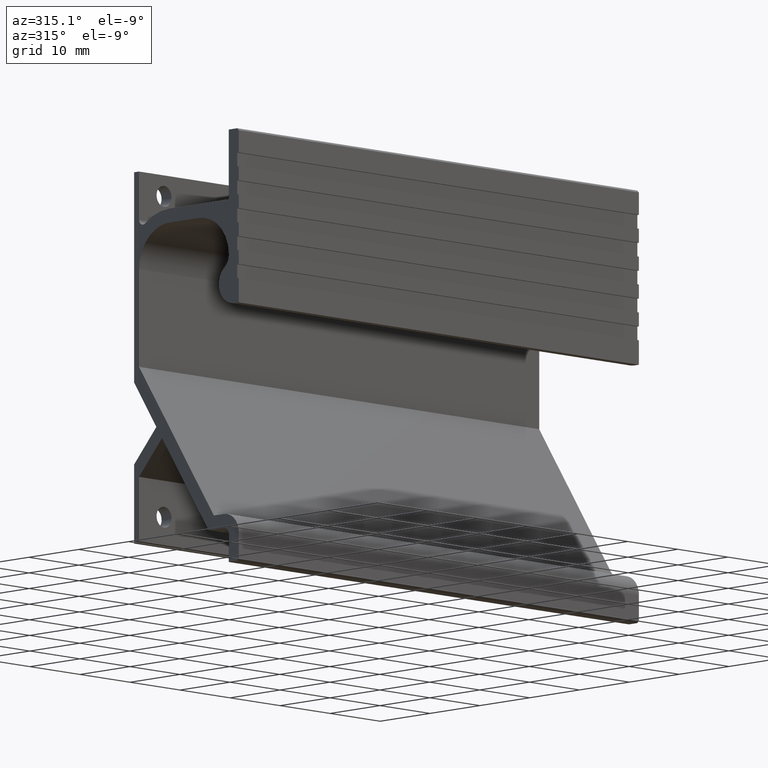
[diagram: clean part render]
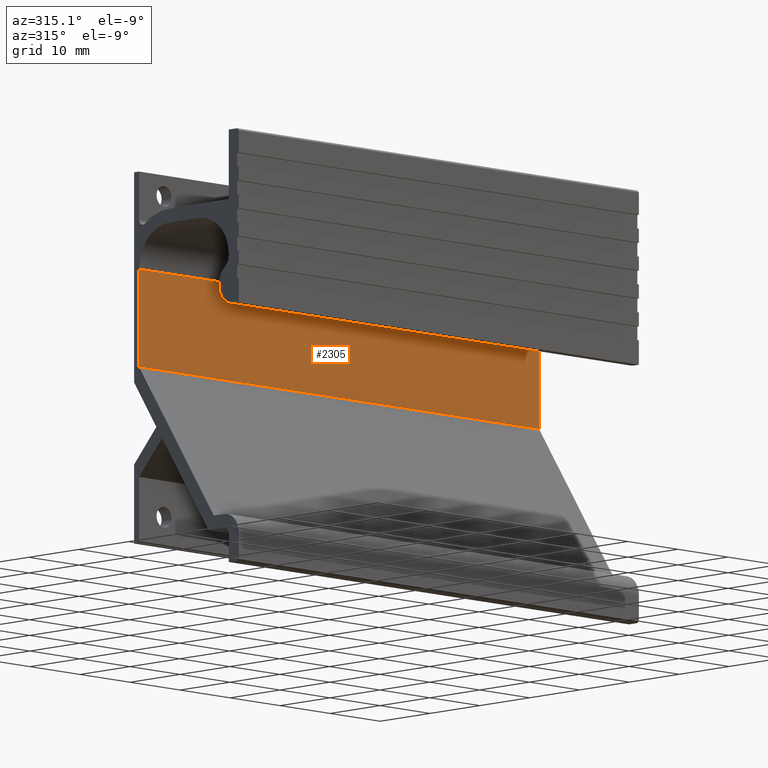
[diagram: same view with one face highlighted and labeled with its STEP entity id]
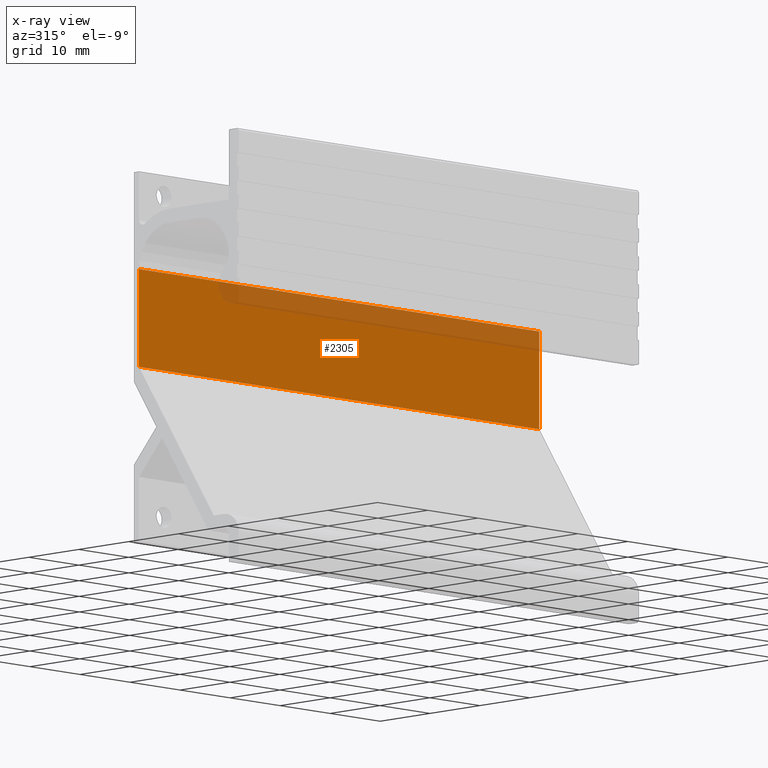
[diagram: x-ray of the same camera — body ghosted, the highlighted face saturated]
A machine part, auxiliary view. The second image highlights one B-rep face of the part: STEP entity #2305.
The next image is the same camera in x-ray: the body ghosted, the highlighted face saturated — about 16% of this face is hidden behind the body in this view.
In plain terms, the highlighted face is a freeform B-spline surface patch.
Its self-contained STEP definition (entity closure, byte-faithful):
#1240=CARTESIAN_POINT('',(40.0,18.0,44.0));
#1241=VERTEX_POINT('',#1240);
#1255=CARTESIAN_POINT('',(40.0,18.0,30.0));
#1256=VERTEX_POINT('',#1255);
#1257=CARTESIAN_POINT('',(40.0,18.0,44.0));
#1258=CARTESIAN_POINT('',(40.0,18.0,30.0));
#1259=QUASI_UNIFORM_CURVE('',1,(#1257,#1258),.UNSPECIFIED.,.F.,.U.);
#1260=EDGE_CURVE('',#1241,#1256,#1259,.T.);
#1476=CARTESIAN_POINT('',(-40.0,18.0,30.0));
#1477=VERTEX_POINT('',#1476);
#1483=CARTESIAN_POINT('',(-40.0,18.0,44.0));
#1484=VERTEX_POINT('',#1483);
#1485=CARTESIAN_POINT('',(-40.0,18.0,44.0));
#1486=CARTESIAN_POINT('',(-40.0,18.0,30.0));
#1487=QUASI_UNIFORM_CURVE('',1,(#1485,#1486),.UNSPECIFIED.,.F.,.U.);
#1488=EDGE_CURVE('',#1484,#1477,#1487,.T.);
#2280=CARTESIAN_POINT('',(-40.0,18.0,30.0));
#2281=CARTESIAN_POINT('',(40.0,18.0,30.0));
#2282=QUASI_UNIFORM_CURVE('',1,(#2280,#2281),.UNSPECIFIED.,.F.,.U.);
#2283=EDGE_CURVE('',#1477,#1256,#2282,.T.);
#2290=CARTESIAN_POINT('',(-43.995999844944478,18.0,44.699299972865283));
#2291=CARTESIAN_POINT('',(-43.995999844944478,18.0,29.300699651625461));
#2292=CARTESIAN_POINT('',(43.996001990711690,18.0,44.699299972865283));
#2293=CARTESIAN_POINT('',(43.996001990711690,18.0,29.300699651625461));
#2294=B_SPLINE_SURFACE_WITH_KNOTS('',1,1,((#2290,#2292),(#2291,#2293)),.UNSPECIFIED.,.F.,.F.,.U.,(2,2),(2,2),(0.0,15.398600321239829),(0.0,87.992001835656168),.UNSPECIFIED.);
#2295=ORIENTED_EDGE('',*,*,#1260,.F.);
#2296=CARTESIAN_POINT('',(-40.0,18.0,44.0));
#2297=CARTESIAN_POINT('',(40.0,18.0,44.0));
#2298=QUASI_UNIFORM_CURVE('',1,(#2296,#2297),.UNSPECIFIED.,.F.,.U.);
#2299=EDGE_CURVE('',#1484,#1241,#2298,.T.);
#2300=ORIENTED_EDGE('',*,*,#2299,.F.);
#2301=ORIENTED_EDGE('',*,*,#1488,.T.);
#2302=ORIENTED_EDGE('',*,*,#2283,.T.);
#2303=EDGE_LOOP('',(#2295,#2300,#2301,#2302));
#2304=FACE_OUTER_BOUND('',#2303,.T.);
#2305=ADVANCED_FACE('',(#2304),#2294,.T.);